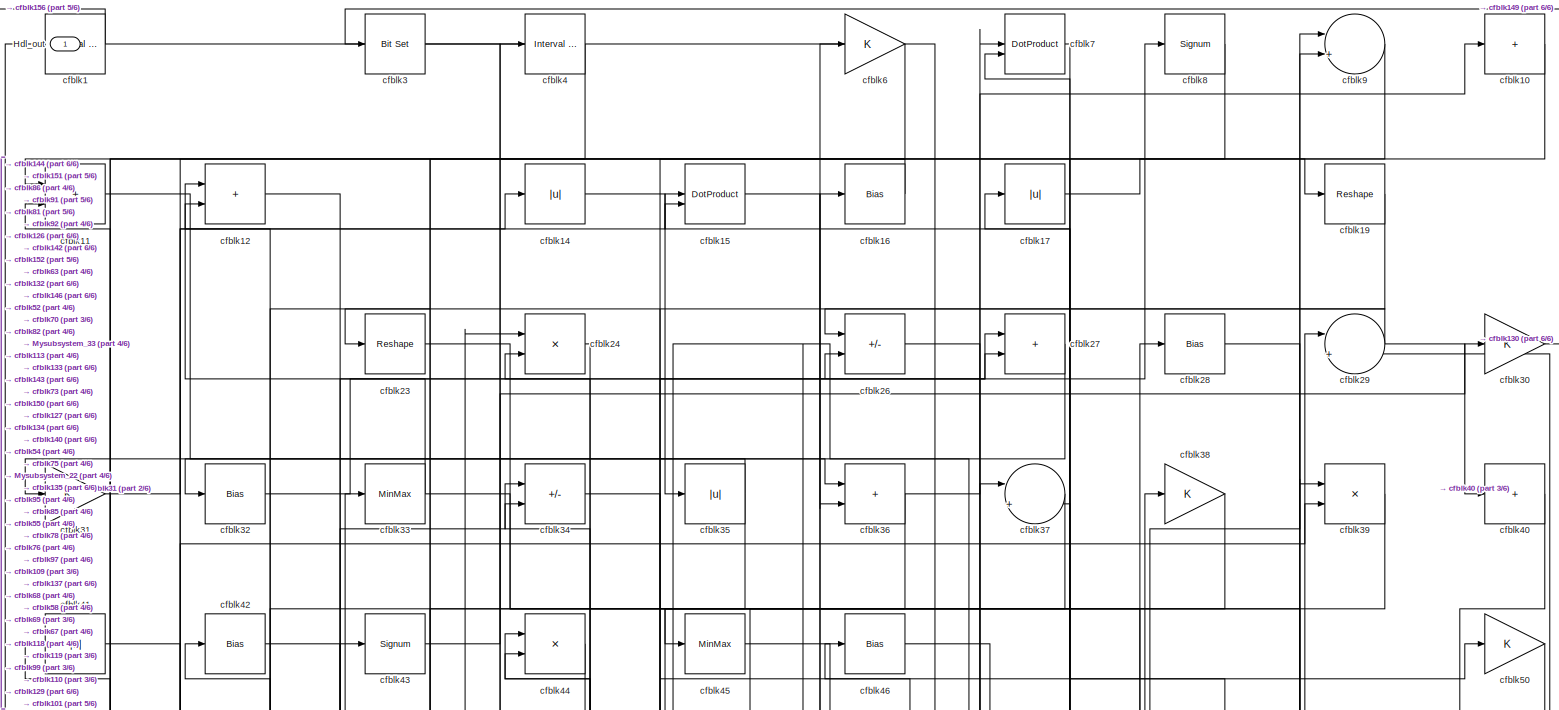
[diagram: root canvas - part 1/6, full width, top band]
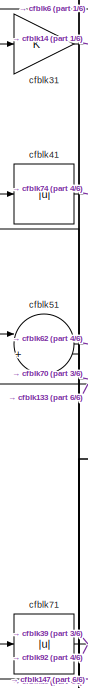
[diagram: root canvas - part 2/6, middle left region]
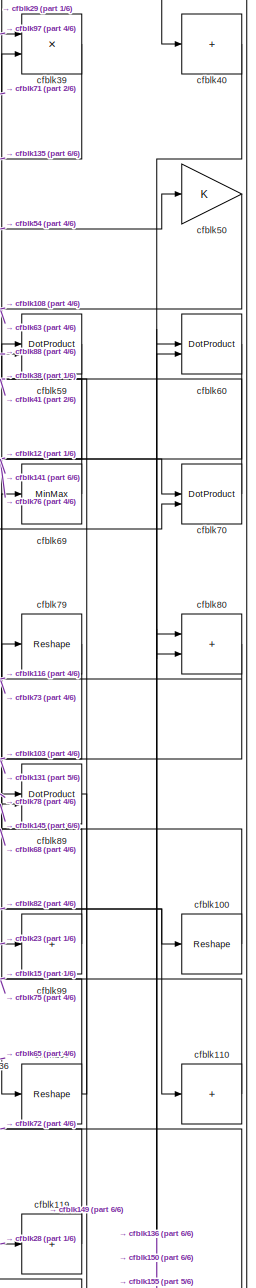
[diagram: root canvas - part 3/6, middle right region]
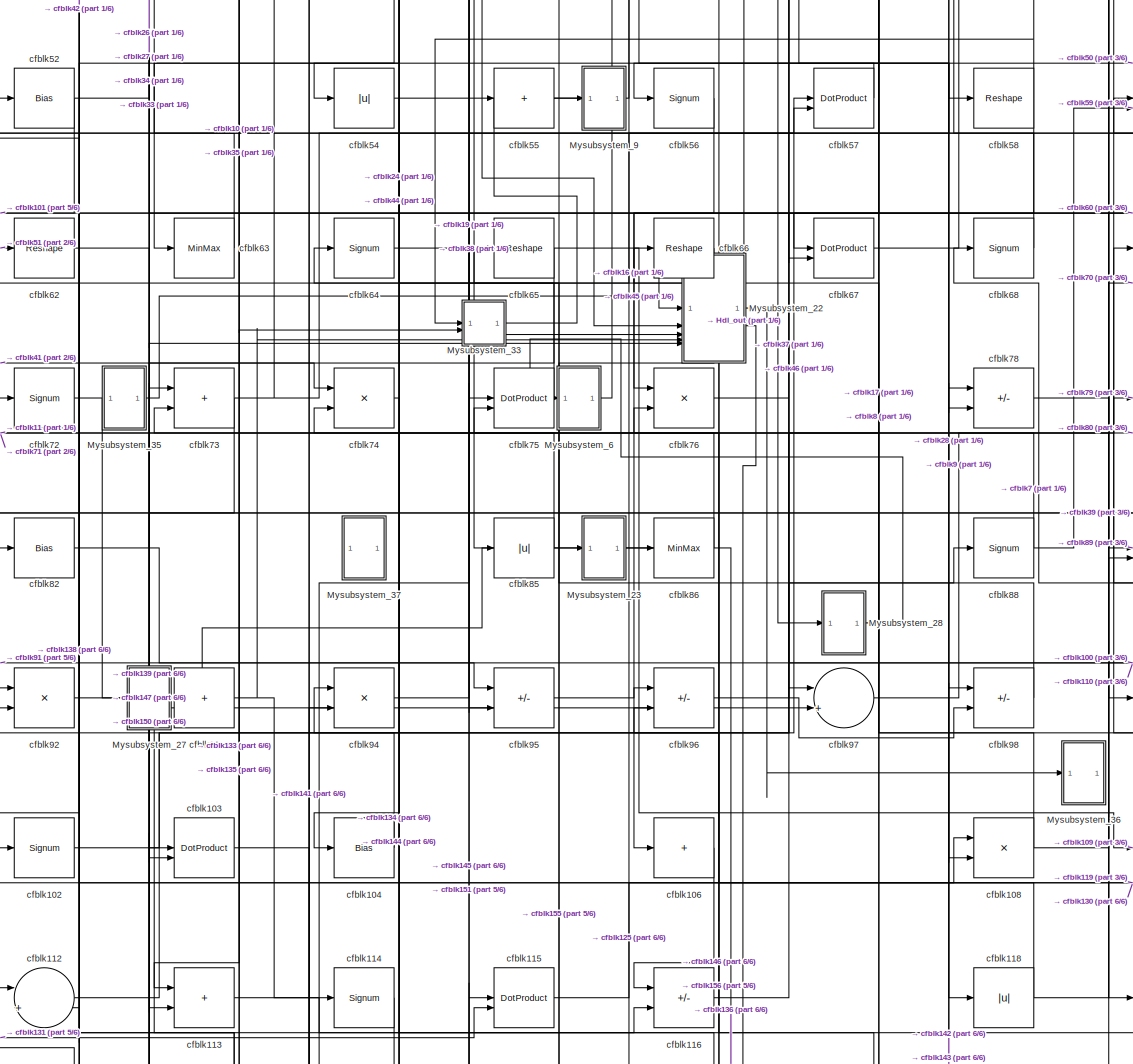
[diagram: root canvas - part 4/6, central region]
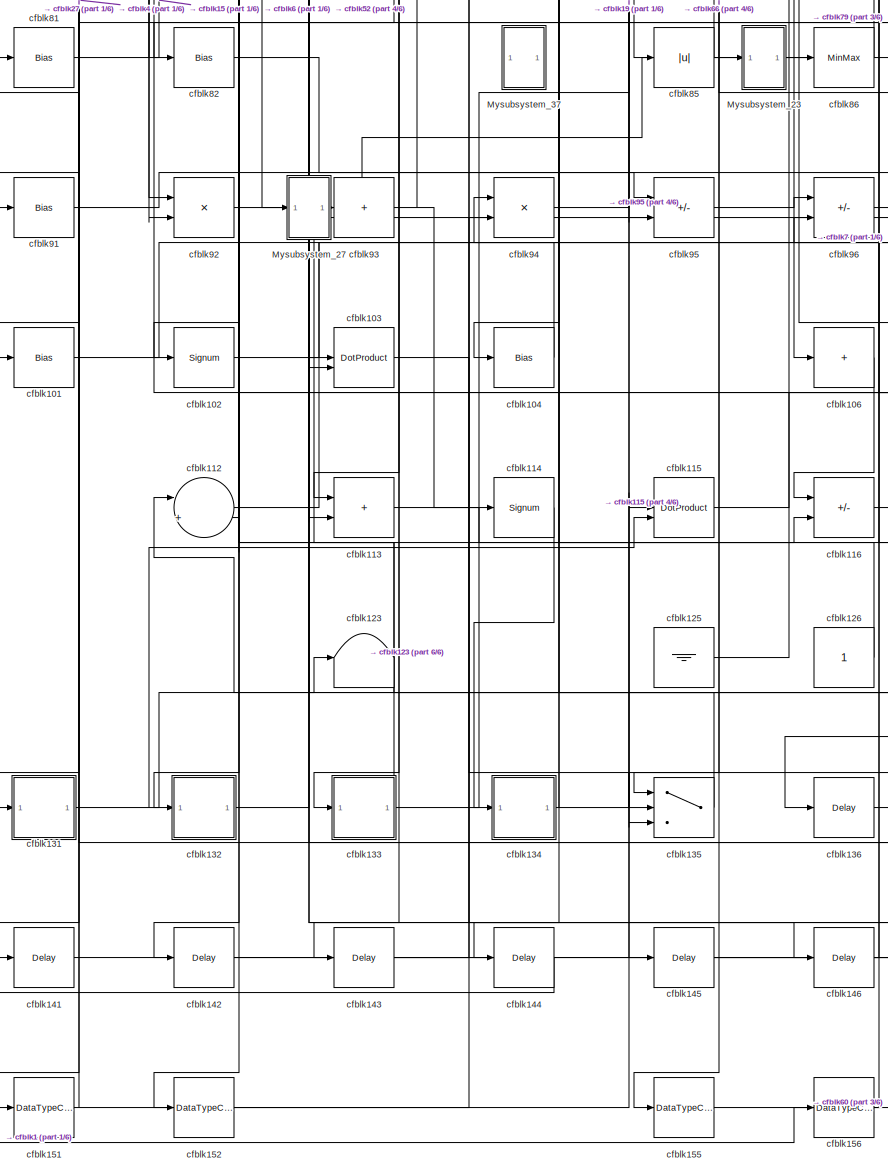
[diagram: root canvas - part 5/6, bottom left region]
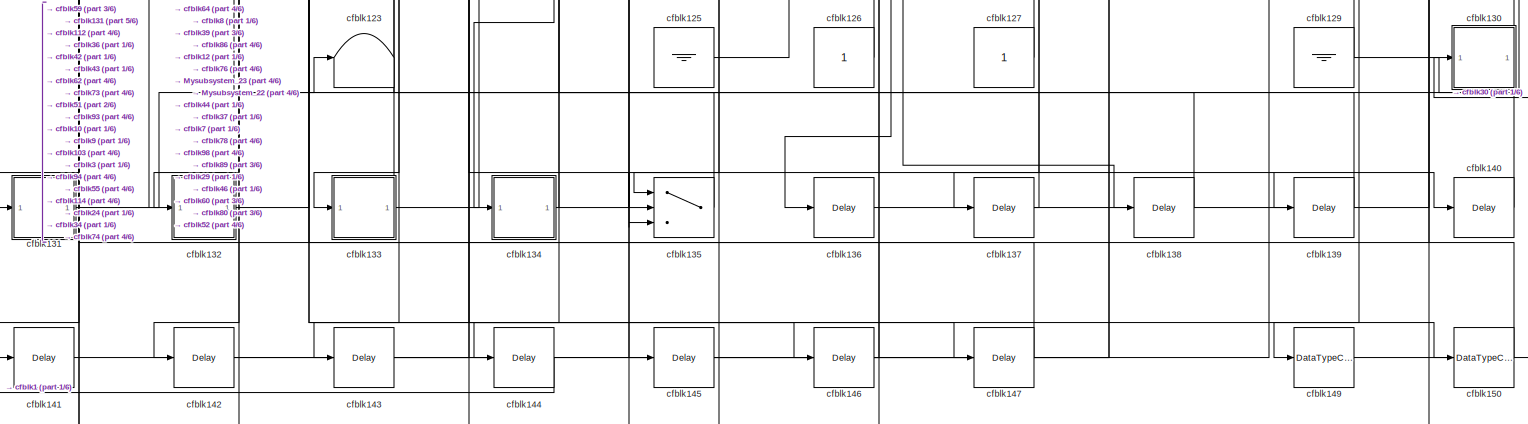
[diagram: root canvas - part 6/6, full width, bottom band]
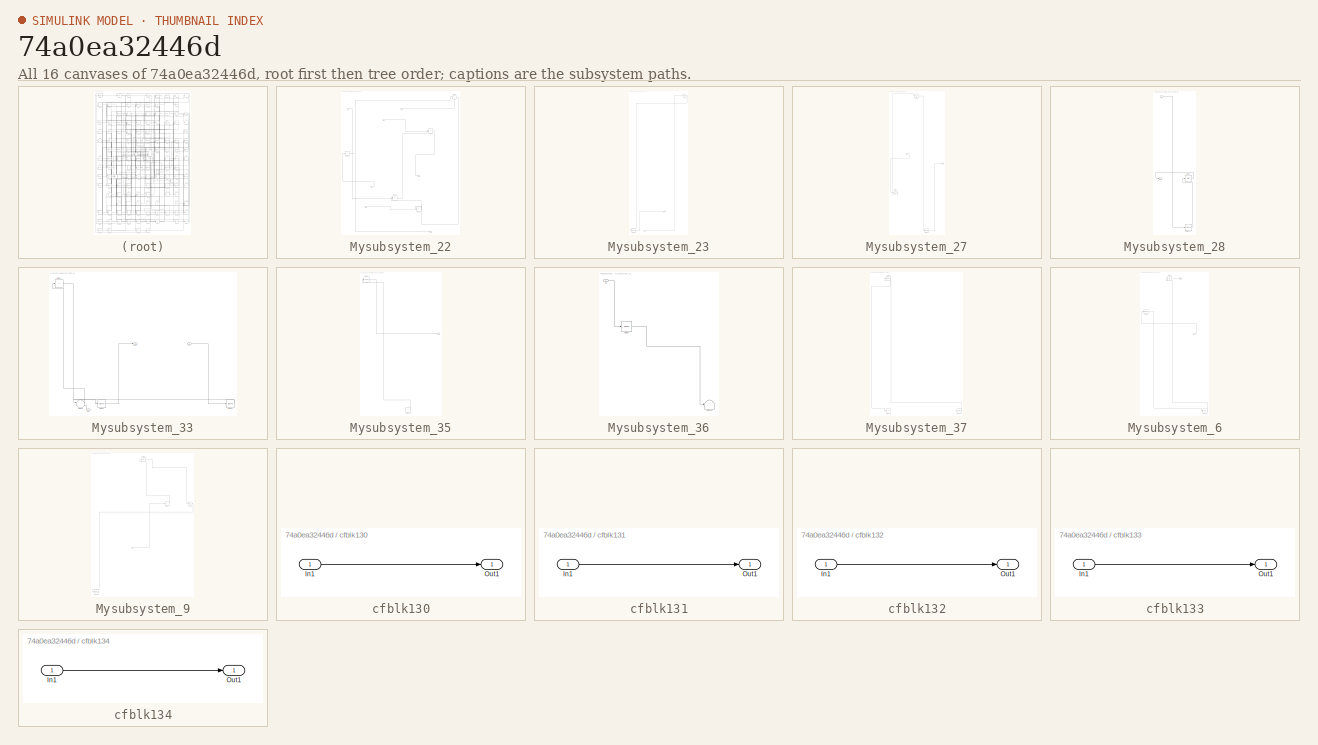
[diagram: thumbnail index - all 16 canvases of the model, root first then tree order]
MODEL slx_74a0ea32446d
KIND model
CONFIG AbsTol = auto
CONFIG EnableMultiTasking = off
CONFIG FixedStep = auto
CONFIG MaxStep = auto
CONFIG MinStep = auto
CONFIG RelTol = 1e-3
CONFIG SampleTimeConstraint = Unconstrained
CONFIG SolverName = VariableStepAuto
CONFIG StartTime = 0.0
CONFIG StopTime = 10.0
BLOCK [Outport] Hdl_out
  OutDataTypeStr = uint8
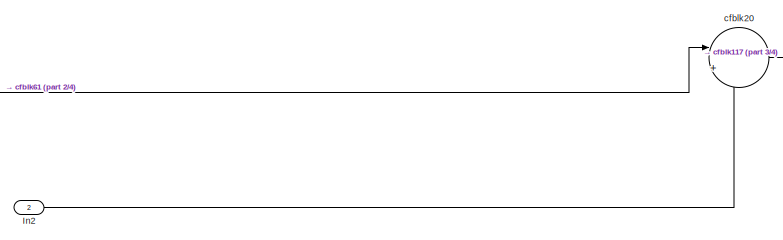
[diagram: Mysubsystem_22 - part 1/4, top right region]
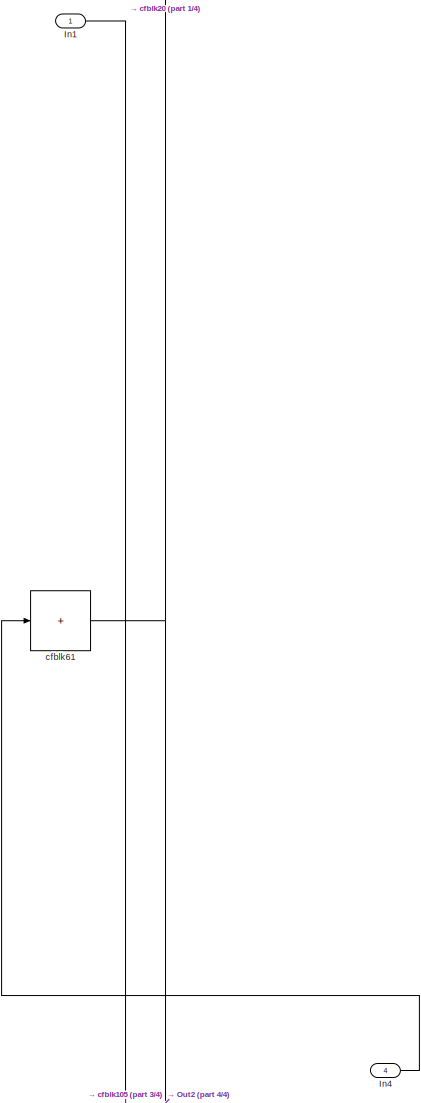
[diagram: Mysubsystem_22 - part 2/4, middle left region]
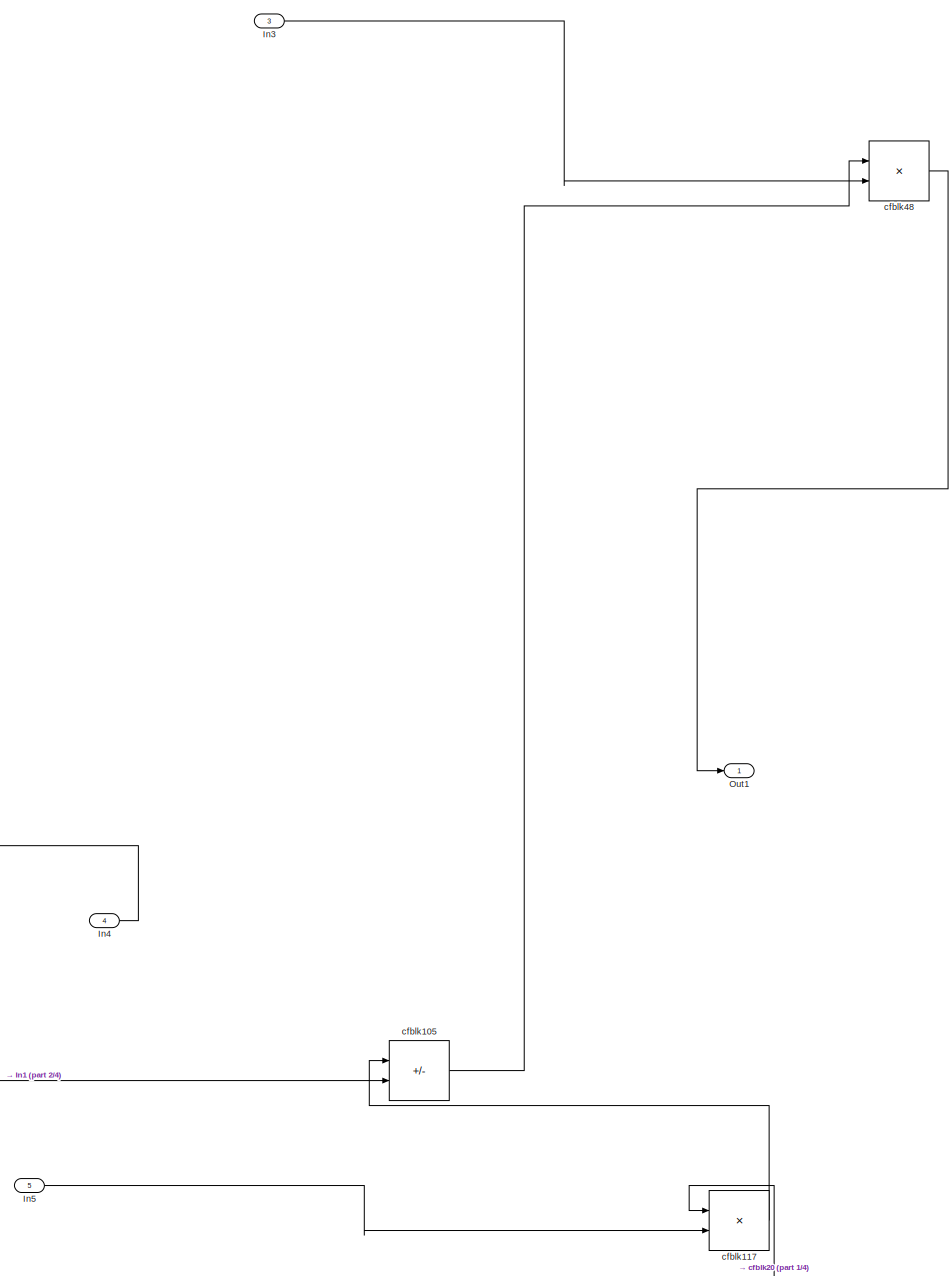
[diagram: Mysubsystem_22 - part 3/4, central region]
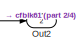
[diagram: Mysubsystem_22 - part 4/4, bottom right region]
BLOCK [SubSystem] Mysubsystem_22
  RTWFcnName = Mysubsystem_22
  RTWFcnNameOpts = User specified
  RTWFileNameOpts = Use function name
  RTWSystemCode = Reusable function
  TreatAsAtomicUnit = on
BLOCK [Inport] Mysubsystem_22/In1
BLOCK [Inport] Mysubsystem_22/In2
  Port = 2
BLOCK [Inport] Mysubsystem_22/In3
  Port = 3
BLOCK [Inport] Mysubsystem_22/In4
  Port = 4
BLOCK [Inport] Mysubsystem_22/In5
  Port = 5
BLOCK [Outport] Mysubsystem_22/Out1
BLOCK [Outport] Mysubsystem_22/Out2
  Port = 2
BLOCK [Sum] Mysubsystem_22/cfblk105
  IconShape = rectangular
  Inputs = +-
BLOCK [Product] Mysubsystem_22/cfblk117
  Inputs = */
  RndMeth = Zero
  SaturateOnIntegerOverflow = on
BLOCK [Sum] Mysubsystem_22/cfblk20
  Inputs = |++
BLOCK [Product] Mysubsystem_22/cfblk48
  Inputs = */
  RndMeth = Zero
  SaturateOnIntegerOverflow = on
BLOCK [Sum] Mysubsystem_22/cfblk61
  IconShape = rectangular
  Inputs = +
BLOCK [SubSystem] Mysubsystem_23
  RTWFcnName = Mysubsystem_23
  RTWFcnNameOpts = User specified
  RTWFileNameOpts = Use function name
  RTWSystemCode = Reusable function
  TreatAsAtomicUnit = on
BLOCK [Inport] Mysubsystem_23/In1
BLOCK [Outport] Mysubsystem_23/Out1
BLOCK [DataTypeConversion] Mysubsystem_23/cfblk153
  OutDataTypeStr = uint8
  RndMeth = Floor
  SaturateOnIntegerOverflow = off
BLOCK [Gain] Mysubsystem_23/cfblk18
BLOCK [SubSystem] Mysubsystem_27
  RTWFcnName = Mysubsystem_27
  RTWFcnNameOpts = User specified
  RTWFileNameOpts = Use function name
  RTWSystemCode = Reusable function
  TreatAsAtomicUnit = on
BLOCK [Inport] Mysubsystem_27/In1
BLOCK [Outport] Mysubsystem_27/Out1
BLOCK [Gain] Mysubsystem_27/cfblk111
BLOCK [Bias] Mysubsystem_27/cfblk13
  Bias = 0.0
  SaturateOnIntegerOverflow = off
BLOCK [DataTypeConversion] Mysubsystem_27/cfblk154
  OutDataTypeStr = uint8
  RndMeth = Floor
  SaturateOnIntegerOverflow = off
BLOCK [SubSystem] Mysubsystem_28
  RTWFcnName = Mysubsystem_28
  RTWFcnNameOpts = User specified
  RTWFileNameOpts = Use function name
  RTWSystemCode = Reusable function
  TreatAsAtomicUnit = on
BLOCK [Inport] Mysubsystem_28/In1
BLOCK [Outport] Mysubsystem_28/Out1
BLOCK [Signum] Mysubsystem_28/cfblk107
BLOCK [Bias] Mysubsystem_28/cfblk77
  Bias = 0.0
  SaturateOnIntegerOverflow = off
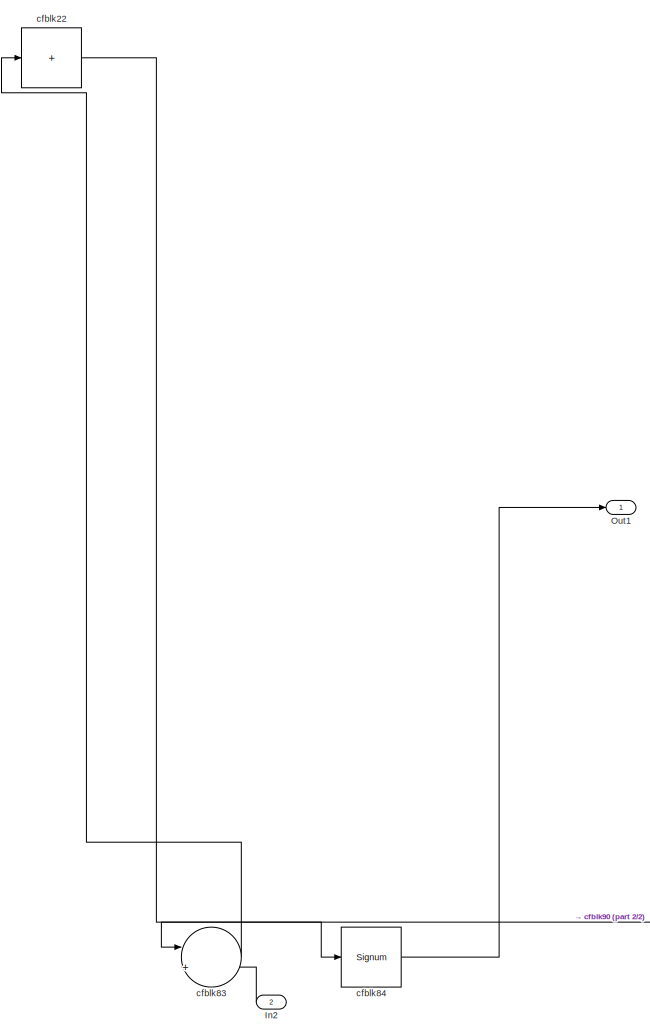
[diagram: Mysubsystem_33 - part 1/2, left side, full height]
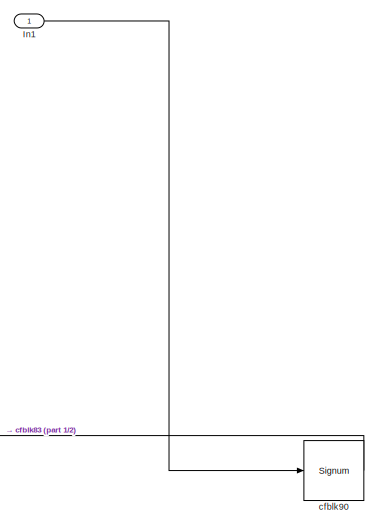
[diagram: Mysubsystem_33 - part 2/2, bottom right region]
BLOCK [SubSystem] Mysubsystem_33
  RTWFcnName = Mysubsystem_33
  RTWFcnNameOpts = User specified
  RTWFileNameOpts = Use function name
  RTWSystemCode = Reusable function
  TreatAsAtomicUnit = on
BLOCK [Inport] Mysubsystem_33/In1
BLOCK [Inport] Mysubsystem_33/In2
  Port = 2
BLOCK [Outport] Mysubsystem_33/Out1
BLOCK [Sum] Mysubsystem_33/cfblk22
  IconShape = rectangular
  Inputs = +
BLOCK [Sum] Mysubsystem_33/cfblk83
  Inputs = |++
BLOCK [Signum] Mysubsystem_33/cfblk84
BLOCK [Signum] Mysubsystem_33/cfblk90
BLOCK [SubSystem] Mysubsystem_35
  RTWFcnName = Mysubsystem_35
  RTWFcnNameOpts = User specified
  RTWFileNameOpts = Use function name
  RTWSystemCode = Reusable function
  TreatAsAtomicUnit = on
BLOCK [Outport] Mysubsystem_35/Out1
BLOCK [Constant] Mysubsystem_35/cfblk124
  SampleTime = -1
BLOCK [Signum] Mysubsystem_35/cfblk21
BLOCK [SubSystem] Mysubsystem_36
  RTWFcnName = Mysubsystem_36
  RTWFcnNameOpts = User specified
  RTWFileNameOpts = Use function name
  RTWSystemCode = Reusable function
  TreatAsAtomicUnit = on
BLOCK [Inport] Mysubsystem_36/In1
BLOCK [Terminator] Mysubsystem_36/cfblk120
BLOCK [MinMax] Mysubsystem_36/cfblk87
BLOCK [SubSystem] Mysubsystem_37
  RTWFcnName = Mysubsystem_37
  RTWFcnNameOpts = User specified
  RTWFileNameOpts = Use function name
  RTWSystemCode = Reusable function
  TreatAsAtomicUnit = on
BLOCK [Display] Mysubsystem_37/cfblk122
  Decimation = 1
BLOCK [Reference] Mysubsystem_37/cfblk128  REF=hdlsllib/Sources/Counter
Limited
  SourceBlock = hdlsllib/Sources/Counter\nLimited
  SourceType = Counter Limited
BLOCK [Reference] Mysubsystem_37/cfblk2  REF=hdlsllib/Logic and Bit
Operations/Detect Fall
Nonpositive
  SourceBlock = hdlsllib/Logic and Bit\nOperations/Detect Fall\nNonpositive
  SourceType = Detect Fall Nonpositive
BLOCK [SubSystem] Mysubsystem_6
  RTWFcnName = Mysubsystem_6
  RTWFcnNameOpts = User specified
  RTWFileNameOpts = Use function name
  RTWSystemCode = Reusable function
  TreatAsAtomicUnit = on
BLOCK [Inport] Mysubsystem_6/In1
BLOCK [Outport] Mysubsystem_6/Out1
BLOCK [Delay] Mysubsystem_6/cfblk148
  InputPortMap = u0
  SampleTime = 1
BLOCK [Abs] Mysubsystem_6/cfblk25
  SaturateOnIntegerOverflow = off
BLOCK [MinMax] Mysubsystem_6/cfblk53
BLOCK [SubSystem] Mysubsystem_9
  RTWFcnName = Mysubsystem_9
  RTWFcnNameOpts = User specified
  RTWFileNameOpts = Use function name
  RTWSystemCode = Reusable function
  TreatAsAtomicUnit = on
BLOCK [Inport] Mysubsystem_9/In1
BLOCK [ToWorkspace] Mysubsystem_9/cfblk121
  MaxDataPoints = inf
  SampleTime = -1
  SaveFormat = Timeseries
  VariableName = simout
BLOCK [Sum] Mysubsystem_9/cfblk47
  IconShape = rectangular
  Inputs = +
BLOCK [Gain] Mysubsystem_9/cfblk49
BLOCK [Bias] Mysubsystem_9/cfblk5
  Bias = 0.0
  SaturateOnIntegerOverflow = off
BLOCK [Reference] cfblk1  REF=hdlsllib/Logic and Bit
Operations/Interval Test
  SourceBlock = hdlsllib/Logic and Bit\nOperations/Interval Test
  SourceType = Interval Test
BLOCK [Sum] cfblk10
  IconShape = rectangular
  Inputs = +
  OutDataTypeStr = uint8
BLOCK [Reshape] cfblk100
BLOCK [Bias] cfblk101
  Bias = 0.0
  SaturateOnIntegerOverflow = off
BLOCK [Signum] cfblk102
BLOCK [DotProduct] cfblk103
  OutDataTypeStr = uint8
BLOCK [Bias] cfblk104
  Bias = 0.0
  SaturateOnIntegerOverflow = off
BLOCK [Sum] cfblk106
  IconShape = rectangular
  Inputs = +
  OutDataTypeStr = uint8
BLOCK [Product] cfblk108
  Inputs = */
  OutDataTypeStr = uint8
  RndMeth = Zero
  SaturateOnIntegerOverflow = on
BLOCK [Reshape] cfblk109
BLOCK [Sum] cfblk11
  IconShape = rectangular
  OutDataTypeStr = uint8
BLOCK [Sum] cfblk110
  IconShape = rectangular
  Inputs = +
  OutDataTypeStr = uint8
BLOCK [Sum] cfblk112
  Inputs = |++
  OutDataTypeStr = uint8
BLOCK [Sum] cfblk113
  IconShape = rectangular
  OutDataTypeStr = uint8
BLOCK [Signum] cfblk114
BLOCK [DotProduct] cfblk115
  OutDataTypeStr = uint8
BLOCK [Sum] cfblk116
  IconShape = rectangular
  Inputs = +-
  OutDataTypeStr = uint8
BLOCK [Abs] cfblk118
  OutDataTypeStr = uint8
  SaturateOnIntegerOverflow = off
BLOCK [Sum] cfblk119
  IconShape = rectangular
  Inputs = +
  OutDataTypeStr = uint8
BLOCK [Sum] cfblk12
  IconShape = rectangular
  OutDataTypeStr = uint8
BLOCK [Terminator] cfblk123
BLOCK [Ground] cfblk125
BLOCK [Constant] cfblk126
  OutDataTypeStr = uint8
  SampleTime = -1
BLOCK [Constant] cfblk127
  OutDataTypeStr = uint8
  SampleTime = -1
BLOCK [Ground] cfblk129
BLOCK [SubSystem] cfblk130
  LibrarySourceBlock = hdlsllib/Ports &\nSubsystems/Subsystem
BLOCK [Inport] cfblk130/In1
BLOCK [Outport] cfblk130/Out1
BLOCK [SubSystem] cfblk131
  LibrarySourceBlock = hdlsllib/Ports &\nSubsystems/Subsystem
BLOCK [Inport] cfblk131/In1
BLOCK [Outport] cfblk131/Out1
BLOCK [SubSystem] cfblk132
  LibrarySourceBlock = hdlsllib/Ports &\nSubsystems/Subsystem
BLOCK [Inport] cfblk132/In1
BLOCK [Outport] cfblk132/Out1
BLOCK [SubSystem] cfblk133
  LibrarySourceBlock = hdlsllib/Ports &\nSubsystems/Subsystem
BLOCK [Inport] cfblk133/In1
BLOCK [Outport] cfblk133/Out1
BLOCK [SubSystem] cfblk134
  LibrarySourceBlock = hdlsllib/Ports &\nSubsystems/Subsystem
BLOCK [Inport] cfblk134/In1
BLOCK [Outport] cfblk134/Out1
BLOCK [Switch] cfblk135
  InputSameDT = off
  OutDataTypeStr = uint8
  SaturateOnIntegerOverflow = off
BLOCK [Delay] cfblk136
  InputPortMap = u0
  SampleTime = 1
BLOCK [Delay] cfblk137
  InputPortMap = u0
  SampleTime = 1
BLOCK [Delay] cfblk138
  InputPortMap = u0
  SampleTime = 1
BLOCK [Delay] cfblk139
  InputPortMap = u0
  SampleTime = 1
BLOCK [Abs] cfblk14
  OutDataTypeStr = uint8
  SaturateOnIntegerOverflow = off
BLOCK [Delay] cfblk140
  InputPortMap = u0
  SampleTime = 1
BLOCK [Delay] cfblk141
  InputPortMap = u0
  SampleTime = 1
BLOCK [Delay] cfblk142
  InputPortMap = u0
  SampleTime = 1
BLOCK [Delay] cfblk143
  InputPortMap = u0
  SampleTime = 1
BLOCK [Delay] cfblk144
  InputPortMap = u0
  SampleTime = 1
BLOCK [Delay] cfblk145
  InputPortMap = u0
  SampleTime = 1
BLOCK [Delay] cfblk146
  InputPortMap = u0
  SampleTime = 1
BLOCK [Delay] cfblk147
  InputPortMap = u0
  SampleTime = 1
BLOCK [DataTypeConversion] cfblk149
  OutDataTypeStr = uint8
  RndMeth = Floor
  SaturateOnIntegerOverflow = off
BLOCK [DotProduct] cfblk15
  OutDataTypeStr = uint8
BLOCK [DataTypeConversion] cfblk150
  OutDataTypeStr = uint8
  RndMeth = Floor
  SaturateOnIntegerOverflow = off
BLOCK [DataTypeConversion] cfblk151
  OutDataTypeStr = uint8
  RndMeth = Floor
  SaturateOnIntegerOverflow = off
BLOCK [DataTypeConversion] cfblk152
  OutDataTypeStr = uint8
  RndMeth = Floor
  SaturateOnIntegerOverflow = off
BLOCK [DataTypeConversion] cfblk155
  OutDataTypeStr = uint8
  RndMeth = Floor
  SaturateOnIntegerOverflow = off
BLOCK [DataTypeConversion] cfblk156
  OutDataTypeStr = uint8
  RndMeth = Floor
  SaturateOnIntegerOverflow = off
BLOCK [Bias] cfblk16
  Bias = 0.0
  SaturateOnIntegerOverflow = off
BLOCK [Abs] cfblk17
  OutDataTypeStr = uint8
  SaturateOnIntegerOverflow = off
BLOCK [Reshape] cfblk19
BLOCK [Reshape] cfblk23
BLOCK [Product] cfblk24
  Inputs = */
  OutDataTypeStr = uint8
  RndMeth = Zero
  SaturateOnIntegerOverflow = on
BLOCK [Sum] cfblk26
  IconShape = rectangular
  Inputs = +-
  OutDataTypeStr = uint8
BLOCK [Sum] cfblk27
  IconShape = rectangular
  OutDataTypeStr = uint8
BLOCK [Bias] cfblk28
  Bias = 0.0
  SaturateOnIntegerOverflow = off
BLOCK [Sum] cfblk29
  Inputs = |++
  OutDataTypeStr = uint8
BLOCK [Reference] cfblk3  REF=simulink/Logic and Bit
Operations/Bit Set
  LibrarySourceBlock = hdlsllib/Logic and Bit\nOperations/Bit Set
  SourceBlock = simulink/Logic and Bit\nOperations/Bit Set
  SourceType = Bit Set
BLOCK [Gain] cfblk30
  OutDataTypeStr = uint8
BLOCK [Gain] cfblk31
  OutDataTypeStr = uint8
BLOCK [Bias] cfblk32
  Bias = 0.0
  SaturateOnIntegerOverflow = off
BLOCK [MinMax] cfblk33
  OutDataTypeStr = uint8
BLOCK [Sum] cfblk34
  IconShape = rectangular
  Inputs = +-
  OutDataTypeStr = uint8
BLOCK [Abs] cfblk35
  OutDataTypeStr = uint8
  SaturateOnIntegerOverflow = off
BLOCK [Sum] cfblk36
  IconShape = rectangular
  OutDataTypeStr = uint8
BLOCK [Sum] cfblk37
  Inputs = |++
  OutDataTypeStr = uint8
BLOCK [Gain] cfblk38
  OutDataTypeStr = uint8
BLOCK [Product] cfblk39
  Inputs = */
  OutDataTypeStr = uint8
  RndMeth = Zero
  SaturateOnIntegerOverflow = on
BLOCK [Reference] cfblk4  REF=hdlsllib/Logic and Bit
Operations/Interval Test
  SourceBlock = hdlsllib/Logic and Bit\nOperations/Interval Test
  SourceType = Interval Test
BLOCK [Sum] cfblk40
  IconShape = rectangular
  Inputs = +
  OutDataTypeStr = uint8
BLOCK [Abs] cfblk41
  OutDataTypeStr = uint8
  SaturateOnIntegerOverflow = off
BLOCK [Bias] cfblk42
  Bias = 0.0
  SaturateOnIntegerOverflow = off
BLOCK [Signum] cfblk43
BLOCK [Product] cfblk44
  Inputs = */
  OutDataTypeStr = uint8
  RndMeth = Zero
  SaturateOnIntegerOverflow = on
BLOCK [MinMax] cfblk45
  OutDataTypeStr = uint8
BLOCK [Bias] cfblk46
  Bias = 0.0
  SaturateOnIntegerOverflow = off
BLOCK [Gain] cfblk50
  OutDataTypeStr = uint8
BLOCK [Sum] cfblk51
  Inputs = |++
  OutDataTypeStr = uint8
BLOCK [Bias] cfblk52
  Bias = 0.0
  SaturateOnIntegerOverflow = off
BLOCK [Abs] cfblk54
  OutDataTypeStr = uint8
  SaturateOnIntegerOverflow = off
BLOCK [Sum] cfblk55
  IconShape = rectangular
  Inputs = +
  OutDataTypeStr = uint8
BLOCK [Signum] cfblk56
BLOCK [DotProduct] cfblk57
  OutDataTypeStr = uint8
BLOCK [Reshape] cfblk58
BLOCK [DotProduct] cfblk59
  OutDataTypeStr = uint8
BLOCK [Gain] cfblk6
  OutDataTypeStr = uint8
BLOCK [DotProduct] cfblk60
  OutDataTypeStr = uint8
BLOCK [Reshape] cfblk62
BLOCK [MinMax] cfblk63
  OutDataTypeStr = uint8
BLOCK [Signum] cfblk64
BLOCK [Reshape] cfblk65
BLOCK [Reshape] cfblk66
BLOCK [DotProduct] cfblk67
  OutDataTypeStr = uint8
BLOCK [Signum] cfblk68
BLOCK [MinMax] cfblk69
  OutDataTypeStr = uint8
BLOCK [DotProduct] cfblk7
  OutDataTypeStr = uint8
BLOCK [DotProduct] cfblk70
  OutDataTypeStr = uint8
BLOCK [Abs] cfblk71
  OutDataTypeStr = uint8
  SaturateOnIntegerOverflow = off
BLOCK [Signum] cfblk72
BLOCK [Sum] cfblk73
  IconShape = rectangular
  OutDataTypeStr = uint8
BLOCK [Product] cfblk74
  Inputs = */
  OutDataTypeStr = uint8
  RndMeth = Zero
  SaturateOnIntegerOverflow = on
BLOCK [DotProduct] cfblk75
  OutDataTypeStr = uint8
BLOCK [Product] cfblk76
  Inputs = */
  OutDataTypeStr = uint8
  RndMeth = Zero
  SaturateOnIntegerOverflow = on
BLOCK [Sum] cfblk78
  IconShape = rectangular
  Inputs = +-
  OutDataTypeStr = uint8
BLOCK [Reshape] cfblk79
BLOCK [Signum] cfblk8
BLOCK [Sum] cfblk80
  IconShape = rectangular
  OutDataTypeStr = uint8
BLOCK [Bias] cfblk81
  Bias = 0.0
  SaturateOnIntegerOverflow = off
BLOCK [Bias] cfblk82
  Bias = 0.0
  SaturateOnIntegerOverflow = off
BLOCK [Abs] cfblk85
  OutDataTypeStr = uint8
  SaturateOnIntegerOverflow = off
BLOCK [MinMax] cfblk86
  OutDataTypeStr = uint8
BLOCK [Signum] cfblk88
BLOCK [DotProduct] cfblk89
  OutDataTypeStr = uint8
BLOCK [Sum] cfblk9
  Inputs = |++
  OutDataTypeStr = uint8
BLOCK [Bias] cfblk91
  Bias = 0.0
  SaturateOnIntegerOverflow = off
BLOCK [Product] cfblk92
  Inputs = */
  OutDataTypeStr = uint8
  RndMeth = Zero
  SaturateOnIntegerOverflow = on
BLOCK [Sum] cfblk93
  IconShape = rectangular
  Inputs = +
  OutDataTypeStr = uint8
BLOCK [Product] cfblk94
  Inputs = */
  OutDataTypeStr = uint8
  RndMeth = Zero
  SaturateOnIntegerOverflow = on
BLOCK [Sum] cfblk95
  IconShape = rectangular
  Inputs = +-
  OutDataTypeStr = uint8
BLOCK [Sum] cfblk96
  IconShape = rectangular
  Inputs = +-
  OutDataTypeStr = uint8
BLOCK [Sum] cfblk97
  Inputs = |++
  OutDataTypeStr = uint8
BLOCK [Sum] cfblk98
  IconShape = rectangular
  Inputs = +-
  OutDataTypeStr = uint8
BLOCK [Sum] cfblk99
  IconShape = rectangular
  Inputs = +
  OutDataTypeStr = uint8
LINE Mysubsystem_22/In1:1 -> Mysubsystem_22/cfblk105:2
LINE Mysubsystem_22/In2:1 -> Mysubsystem_22/cfblk20:2
LINE Mysubsystem_22/In3:1 -> Mysubsystem_22/cfblk48:2
LINE Mysubsystem_22/In4:1 -> Mysubsystem_22/cfblk61:1
LINE Mysubsystem_22/In5:1 -> Mysubsystem_22/cfblk117:2
LINE Mysubsystem_22/cfblk105:1 -> Mysubsystem_22/cfblk48:1
LINE Mysubsystem_22/cfblk117:1 -> Mysubsystem_22/cfblk105:1
LINE Mysubsystem_22/cfblk20:1 -> Mysubsystem_22/cfblk117:1
LINE Mysubsystem_22/cfblk48:1 -> Mysubsystem_22/Out1:1
NET Mysubsystem_22/cfblk61:1 -> Mysubsystem_22/Out2:1, Mysubsystem_22/cfblk20:1
NET Mysubsystem_22:1 -> Hdl_out:1, Mysubsystem_36:1
LINE Mysubsystem_22:2 -> cfblk138:1
LINE Mysubsystem_23/In1:1 -> Mysubsystem_23/cfblk18:1
LINE Mysubsystem_23/cfblk153:1 -> Mysubsystem_23/Out1:1
LINE Mysubsystem_23/cfblk18:1 -> Mysubsystem_23/cfblk153:1
LINE Mysubsystem_23:1 -> cfblk136:1
LINE Mysubsystem_27/In1:1 -> Mysubsystem_27/cfblk111:1
LINE Mysubsystem_27/cfblk111:1 -> Mysubsystem_27/cfblk13:1
LINE Mysubsystem_27/cfblk13:1 -> Mysubsystem_27/cfblk154:1
LINE Mysubsystem_27/cfblk154:1 -> Mysubsystem_27/Out1:1
LINE Mysubsystem_27:1 -> Mysubsystem_23:1
LINE Mysubsystem_28/In1:1 -> Mysubsystem_28/cfblk107:1
LINE Mysubsystem_28/cfblk107:1 -> Mysubsystem_28/cfblk77:1
LINE Mysubsystem_28/cfblk77:1 -> Mysubsystem_28/Out1:1
LINE Mysubsystem_28:1 -> Mysubsystem_6:1
LINE Mysubsystem_33/In1:1 -> Mysubsystem_33/cfblk90:1
LINE Mysubsystem_33/In2:1 -> Mysubsystem_33/cfblk83:2
LINE Mysubsystem_33/cfblk22:1 -> Mysubsystem_33/cfblk84:1
LINE Mysubsystem_33/cfblk83:1 -> Mysubsystem_33/cfblk22:1
LINE Mysubsystem_33/cfblk84:1 -> Mysubsystem_33/Out1:1
LINE Mysubsystem_33/cfblk90:1 -> Mysubsystem_33/cfblk83:1
LINE Mysubsystem_33:1 -> Mysubsystem_9:1
LINE Mysubsystem_35/cfblk124:1 -> Mysubsystem_35/cfblk21:1
LINE Mysubsystem_35/cfblk21:1 -> Mysubsystem_35/Out1:1
LINE Mysubsystem_35:1 -> Mysubsystem_22:1
LINE Mysubsystem_36/In1:1 -> Mysubsystem_36/cfblk87:1
LINE Mysubsystem_36/cfblk87:1 -> Mysubsystem_36/cfblk120:1
LINE Mysubsystem_37/cfblk128:1 -> Mysubsystem_37/cfblk2:1
LINE Mysubsystem_37/cfblk2:1 -> Mysubsystem_37/cfblk122:1
LINE Mysubsystem_6/In1:1 -> Mysubsystem_6/cfblk53:1
LINE Mysubsystem_6/cfblk148:1 -> Mysubsystem_6/cfblk25:1
LINE Mysubsystem_6/cfblk25:1 -> Mysubsystem_6/Out1:1
LINE Mysubsystem_6/cfblk53:1 -> Mysubsystem_6/cfblk148:1
NET Mysubsystem_6:1 -> Mysubsystem_22:2, Mysubsystem_28:1
LINE Mysubsystem_9/In1:1 -> Mysubsystem_9/cfblk47:1
LINE Mysubsystem_9/cfblk47:1 -> Mysubsystem_9/cfblk5:1
LINE Mysubsystem_9/cfblk49:1 -> Mysubsystem_9/cfblk121:1
LINE Mysubsystem_9/cfblk5:1 -> Mysubsystem_9/cfblk49:1
LINE cfblk100:1 -> cfblk68:1
LINE cfblk101:1 -> cfblk7:1
LINE cfblk102:1 -> cfblk57:1
LINE cfblk103:1 -> cfblk135:2
LINE cfblk104:1 -> cfblk94:1
LINE cfblk106:1 -> cfblk116:1
NET cfblk108:1 -> cfblk64:1, cfblk70:2
NET cfblk109:1 -> cfblk15:2, cfblk59:1, cfblk75:2
NET cfblk10:1 -> Mysubsystem_33:2, cfblk143:1, cfblk92:2
LINE cfblk110:1 -> cfblk29:1
LINE cfblk112:1 -> cfblk88:1
LINE cfblk113:1 -> cfblk116:2
LINE cfblk114:1 -> cfblk134:1
LINE cfblk115:1 -> cfblk108:1
LINE cfblk116:1 -> cfblk79:1
NET cfblk118:1 -> cfblk96:2, cfblk9:2
LINE cfblk119:1 -> cfblk72:1
LINE cfblk11:1 -> cfblk36:1
LINE cfblk125:1 -> cfblk86:1
LINE cfblk126:1 -> cfblk12:2
LINE cfblk127:1 -> cfblk44:1
NET cfblk129:1 -> cfblk29:2, cfblk46:1
LINE cfblk12:1 -> cfblk70:1
LINE cfblk130/In1:1 -> cfblk130/Out1:1
LINE cfblk130:1 -> cfblk52:1
LINE cfblk131/In1:1 -> cfblk131/Out1:1
NET cfblk131:1 -> cfblk115:2, cfblk123:1
LINE cfblk132/In1:1 -> cfblk132/Out1:1
LINE cfblk132:1 -> cfblk43:1
LINE cfblk133/In1:1 -> cfblk133/Out1:1
NET cfblk133:1 -> cfblk51:1, cfblk55:1
LINE cfblk134/In1:1 -> cfblk134/Out1:1
NET cfblk134:1 -> cfblk139:1, cfblk140:1, cfblk34:2
LINE cfblk135:1 -> cfblk93:1
LINE cfblk136:1 -> cfblk60:1
LINE cfblk137:1 -> cfblk37:2
LINE cfblk138:1 -> cfblk112:1
LINE cfblk139:1 -> cfblk73:1
LINE cfblk140:1 -> cfblk24:2
LINE cfblk141:1 -> cfblk94:2
LINE cfblk142:1 -> cfblk98:1
LINE cfblk143:1 -> cfblk78:1
LINE cfblk144:1 -> cfblk1:1
LINE cfblk145:1 -> cfblk89:2
LINE cfblk146:1 -> cfblk76:2
LINE cfblk147:1 -> cfblk51:2
LINE cfblk149:1 -> cfblk3:1
LINE cfblk14:1 -> cfblk35:1
NET cfblk150:1 -> cfblk103:1, cfblk80:1
NET cfblk151:1 -> cfblk115:1, cfblk81:1
LINE cfblk152:1 -> cfblk4:1
LINE cfblk155:1 -> cfblk60:2
LINE cfblk156:1 -> cfblk66:1
LINE cfblk15:1 -> cfblk36:2
LINE cfblk16:1 -> cfblk11:1
LINE cfblk17:1 -> cfblk19:1
NET cfblk19:1 -> cfblk152:1, cfblk95:2
LINE cfblk1:1 -> cfblk156:1
LINE cfblk23:1 -> cfblk99:1
LINE cfblk24:1 -> cfblk54:1
LINE cfblk26:1 -> cfblk97:1
LINE cfblk27:1 -> cfblk91:1
LINE cfblk28:1 -> cfblk119:1
NET cfblk29:1 -> cfblk26:1, cfblk40:1
LINE cfblk30:1 -> cfblk130:1
LINE cfblk31:1 -> cfblk14:1
LINE cfblk32:1 -> cfblk8:1
NET cfblk33:1 -> cfblk12:1, cfblk58:1
LINE cfblk34:1 -> Mysubsystem_22:3
NET cfblk35:1 -> cfblk113:1, cfblk32:1
NET cfblk36:1 -> cfblk10:1, cfblk142:1
LINE cfblk37:1 -> cfblk45:1
LINE cfblk38:1 -> cfblk85:1
LINE cfblk39:1 -> cfblk135:1
LINE cfblk3:1 -> cfblk150:1
LINE cfblk40:1 -> cfblk80:2
LINE cfblk41:1 -> cfblk74:1
LINE cfblk42:1 -> cfblk146:1
LINE cfblk43:1 -> cfblk30:1
LINE cfblk44:1 -> cfblk132:1
LINE cfblk45:1 -> cfblk78:2
LINE cfblk46:1 -> cfblk118:1
LINE cfblk4:1 -> cfblk151:1
NET cfblk50:1 -> cfblk108:2, cfblk63:1
LINE cfblk51:1 -> cfblk62:1
NET cfblk52:1 -> cfblk101:1, cfblk112:2, cfblk34:1
NET cfblk54:1 -> cfblk104:1, cfblk27:2, cfblk50:1
LINE cfblk55:1 -> cfblk16:1
LINE cfblk56:1 -> cfblk106:1
LINE cfblk57:1 -> cfblk56:1
NET cfblk58:1 -> Mysubsystem_33:1, cfblk67:2, cfblk7:2, cfblk82:1
LINE cfblk59:1 -> cfblk141:1
LINE cfblk60:1 -> cfblk76:1
NET cfblk62:1 -> Mysubsystem_22:5, cfblk147:1
LINE cfblk63:1 -> cfblk42:1
LINE cfblk64:1 -> cfblk145:1
NET cfblk65:1 -> cfblk109:1, cfblk113:2
LINE cfblk66:1 -> cfblk155:1
LINE cfblk67:1 -> cfblk9:1
NET cfblk68:1 -> cfblk17:1, cfblk33:1
LINE cfblk69:1 -> cfblk38:1
LINE cfblk6:1 -> cfblk31:1
LINE cfblk70:1 -> cfblk41:1
NET cfblk71:1 -> cfblk39:2, cfblk92:1
LINE cfblk72:1 -> Mysubsystem_27:1
NET cfblk73:1 -> cfblk102:1, cfblk24:1, cfblk28:1
LINE cfblk74:1 -> cfblk144:1
LINE cfblk75:1 -> cfblk44:2
NET cfblk76:1 -> cfblk100:1, cfblk37:1
LINE cfblk78:1 -> cfblk89:1
LINE cfblk79:1 -> cfblk131:1
LINE cfblk7:1 -> cfblk137:1
NET cfblk80:1 -> cfblk103:2, cfblk73:2
NET cfblk81:1 -> cfblk15:1, cfblk6:1
NET cfblk82:1 -> cfblk110:1, cfblk26:2, cfblk27:1
NET cfblk85:1 -> cfblk57:2, cfblk74:2
LINE cfblk86:1 -> cfblk11:2
NET cfblk88:1 -> cfblk59:2, cfblk71:1
LINE cfblk89:1 -> cfblk149:1
NET cfblk8:1 -> cfblk135:3, cfblk67:1
LINE cfblk91:1 -> cfblk95:1
LINE cfblk92:1 -> cfblk97:2
NET cfblk93:1 -> Mysubsystem_22:4, cfblk114:1
LINE cfblk94:1 -> cfblk75:1
LINE cfblk95:1 -> cfblk96:1
LINE cfblk96:1 -> cfblk98:2
LINE cfblk97:1 -> cfblk39:1
LINE cfblk98:1 -> cfblk65:1
LINE cfblk99:1 -> cfblk69:1
NET cfblk9:1 -> cfblk133:1, cfblk23:1
note: NET lines group one-source signal fan-out (src -> all destinations, sorted); 1:1 wires keep LINE
